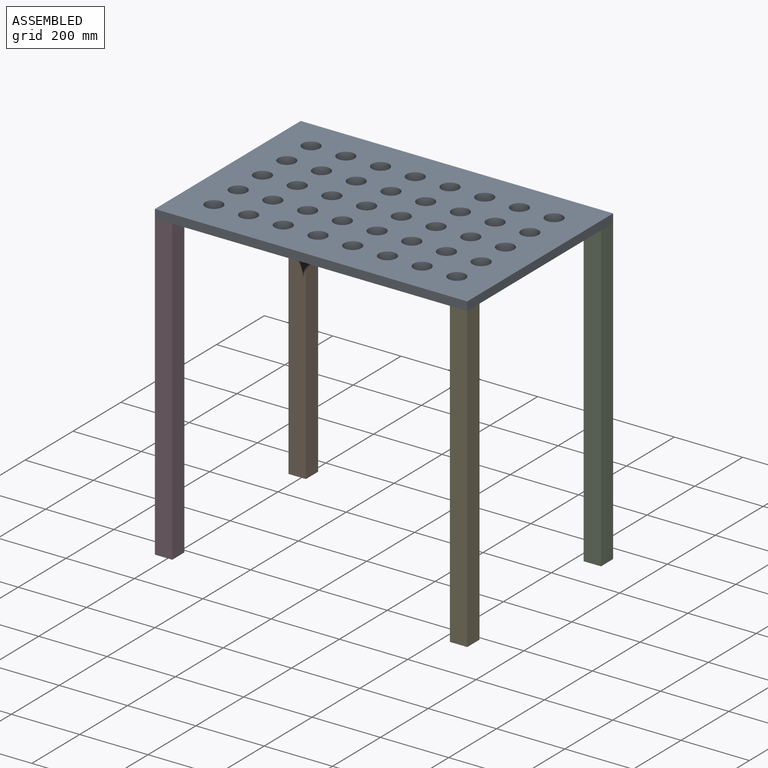
[diagram: assembled view]
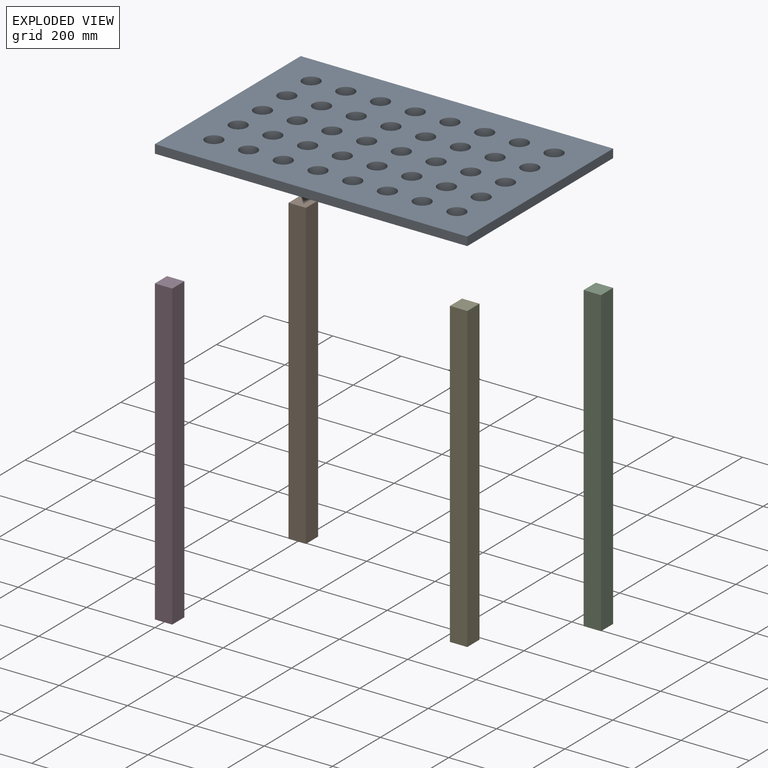
[diagram: exploded view]
GUIDED TOUR — MATED ASSEMBLY (Onshape document 39972ab8cadcbfc1535ae812, AutoMate assembly 39972ab8cadcbfc1535ae812_f03ca3b0d1e899d6af9428eb_a8540f1d7b1957737a421ba1_default)

This assembly has 5 components, labeled P0..P4 below (a component is one placed occurrence of a part; the same part can appear more than once), held together by 4 mates. A mate is a constraint between two components; its type names the relative motion it leaves free:
  FASTENED — locks the two components together rigidly (no relative motion).
Axis/direction vectors are unit vectors and 'through' points are millimeter coordinates, both in the assembly's world frame.

MATES
  1. FASTENED "Fastened 1": P3 <-> P0, direction (0.000, 0.000, 1.000) through (0.00, 0.00, 889.00) mm
  2. FASTENED "Fastened 3": P4 <-> P0, direction (0.000, 0.000, 1.000) through (914.40, 0.00, 889.00) mm
  3. FASTENED "Fastened 4": P2 <-> P0, direction (0.000, 0.000, 1.000) through (914.40, 609.60, 889.00) mm
  4. FASTENED "Fastened 5": P1 <-> P0, direction (0.000, 0.000, 1.000) through (0.00, 609.60, 889.00) mm

ASSEMBLY ORDER
  1. P4 — the base component [order verified]
  2. P3 [order verified]
  3. P2 [order verified]
  4. P1 [order verified]
  5. P0 [order verified]
Order-tag legend:
  [order verified] — this step's position reverses a verified removal order: the component was checked to insert without passing through the ones already placed.

Of the 5 components, 5 carry the full construction recipe — the FeatureScript program that regenerates the part's solid from scratch; the rest are supplied as boundary geometry only.
Each toured component is shown spotlighted twice — in the assembled view, then in the exploded view, where a leader line traces a displaced component back to its assembled socket (saturated green if recipe-attached, orange if geometry-only; every other component desaturated gray) — followed by its recipe or geometry summary and the mates that hold it.
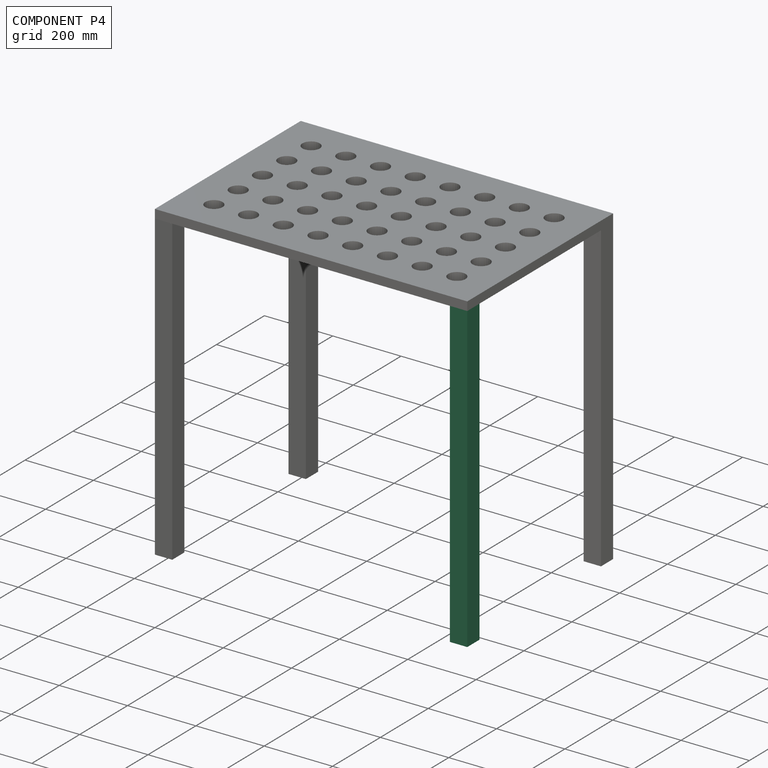
[diagram: component P4 — assembled]
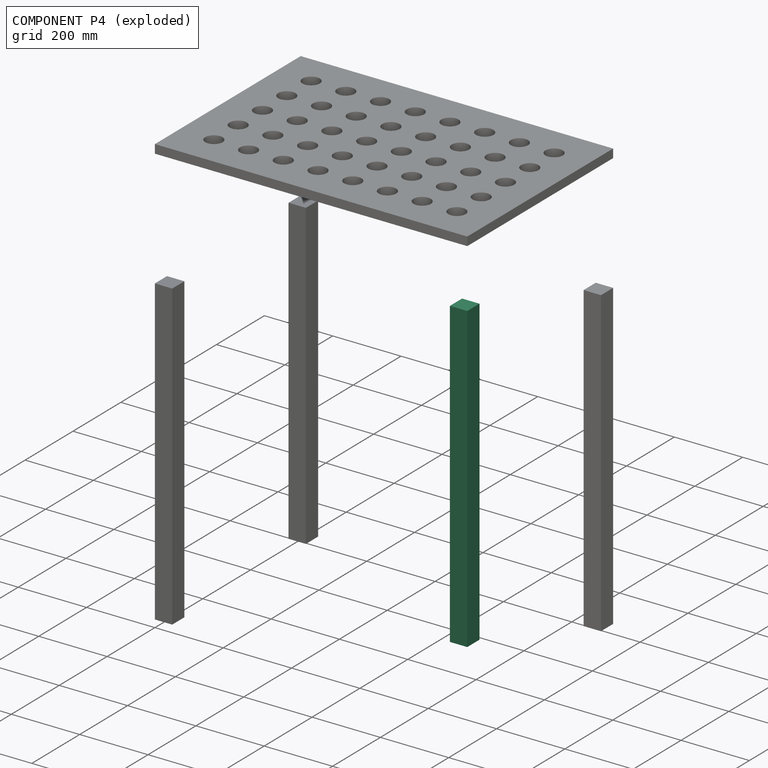
[diagram: component P4 — exploded]
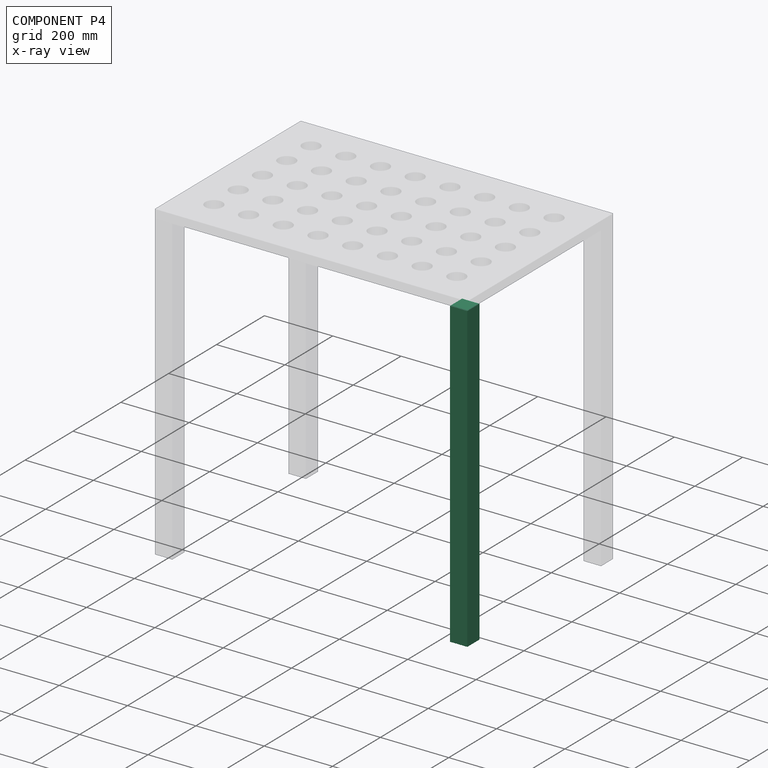
[diagram: component P4 — x-ray view]
COMPONENT P4 — same part as P1 (CADFS 00607771); its construction recipe is shown at P1.
Held by: FASTENED mate "Fastened 3" to P0.
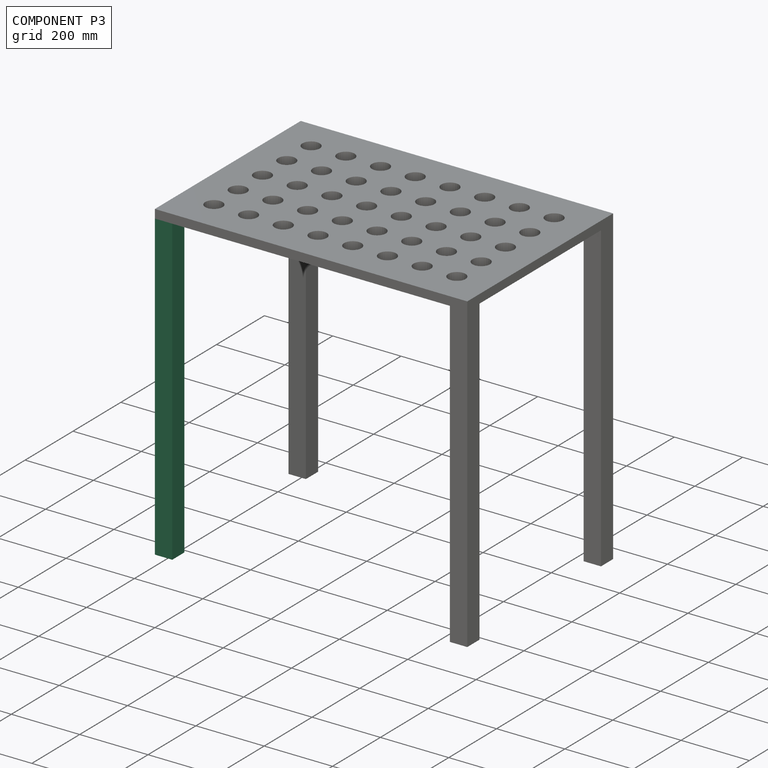
[diagram: component P3 — assembled]
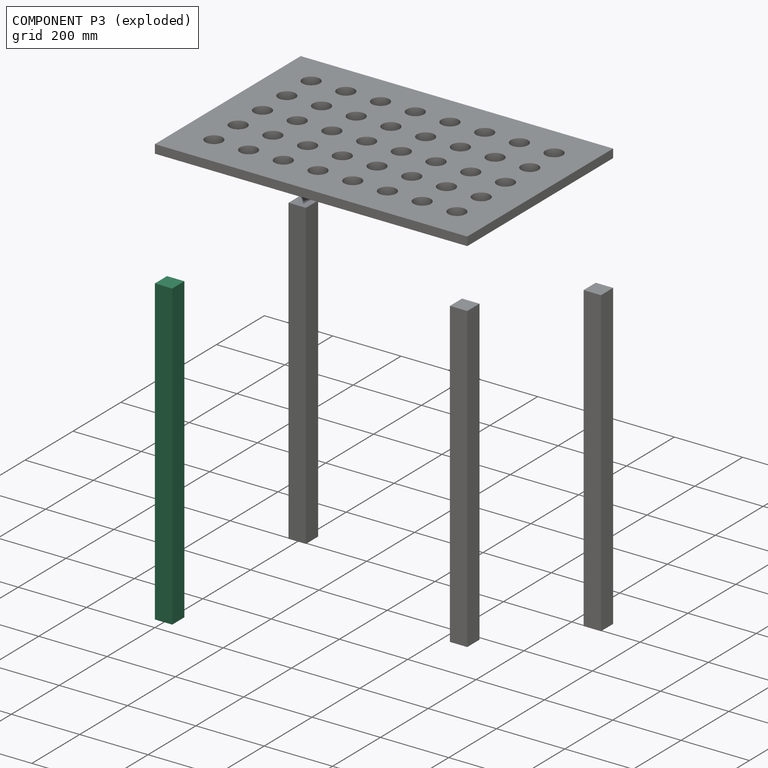
[diagram: component P3 — exploded]
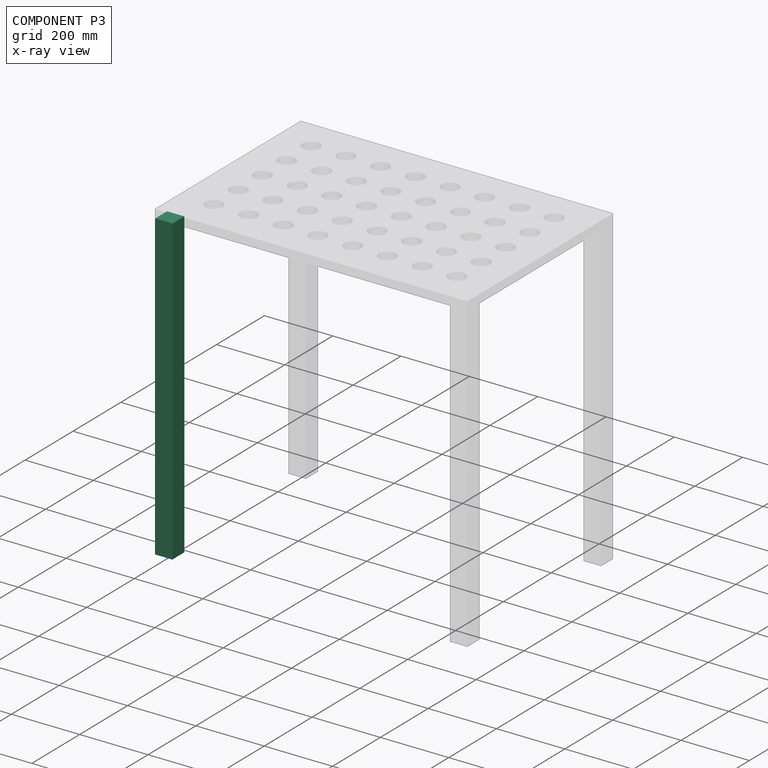
[diagram: component P3 — x-ray view]
COMPONENT P3 — same part as P1 (CADFS 00607771); its construction recipe is shown at P1.
Held by: FASTENED mate "Fastened 1" to P0.
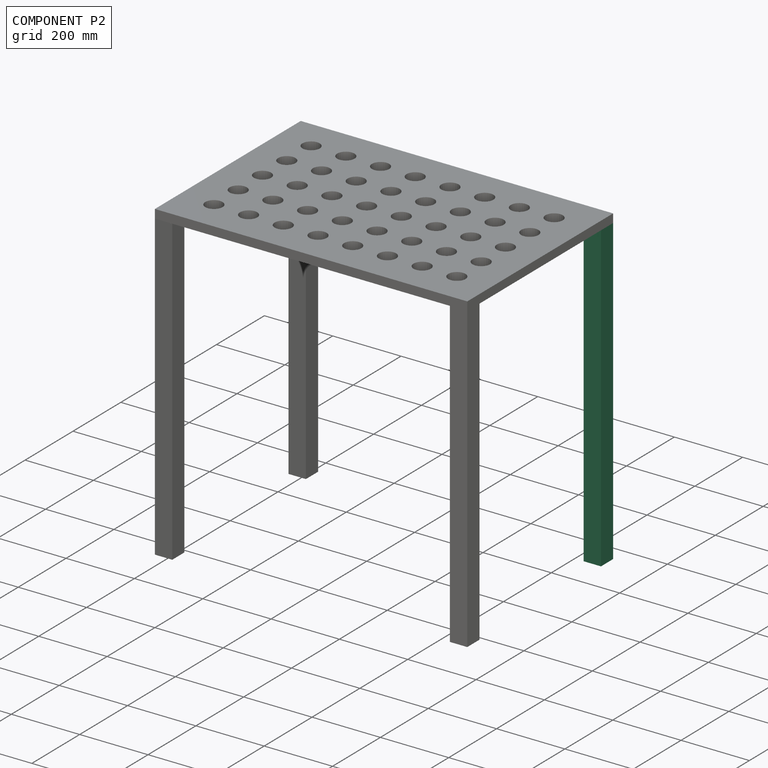
[diagram: component P2 — assembled]
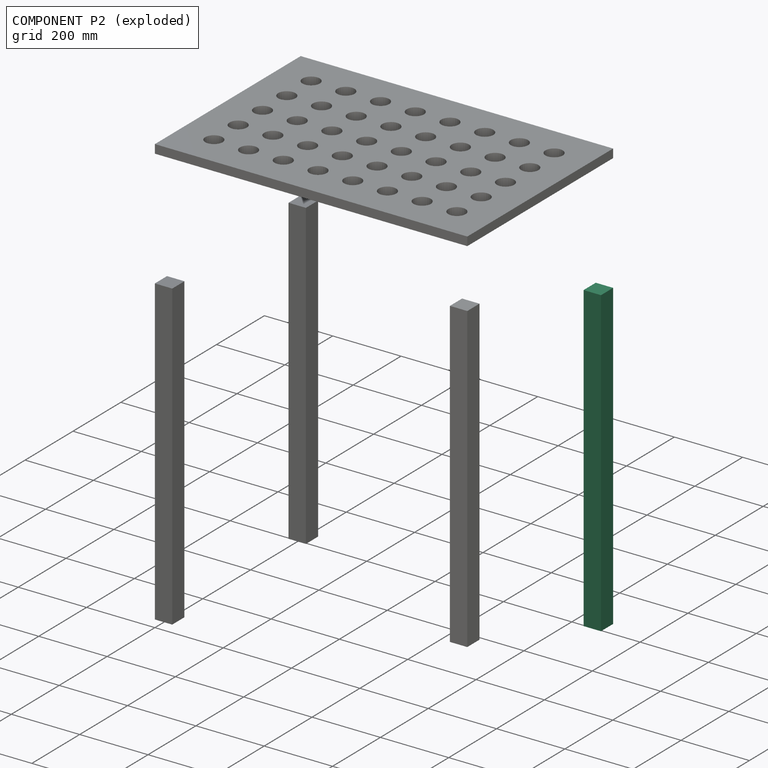
[diagram: component P2 — exploded]
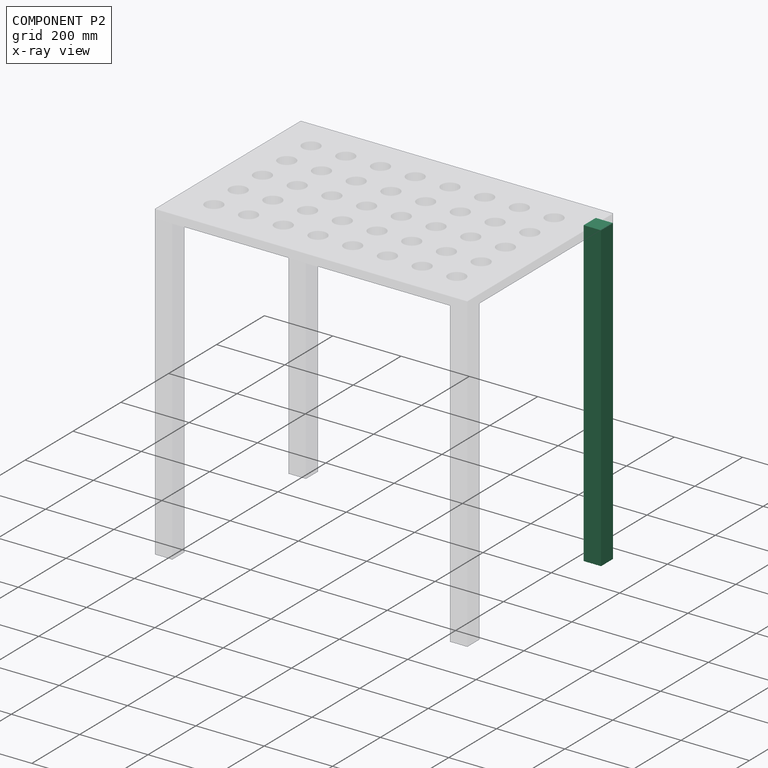
[diagram: component P2 — x-ray view]
COMPONENT P2 — same part as P1 (CADFS 00607771); its construction recipe is shown at P1.
Held by: FASTENED mate "Fastened 4" to P0.
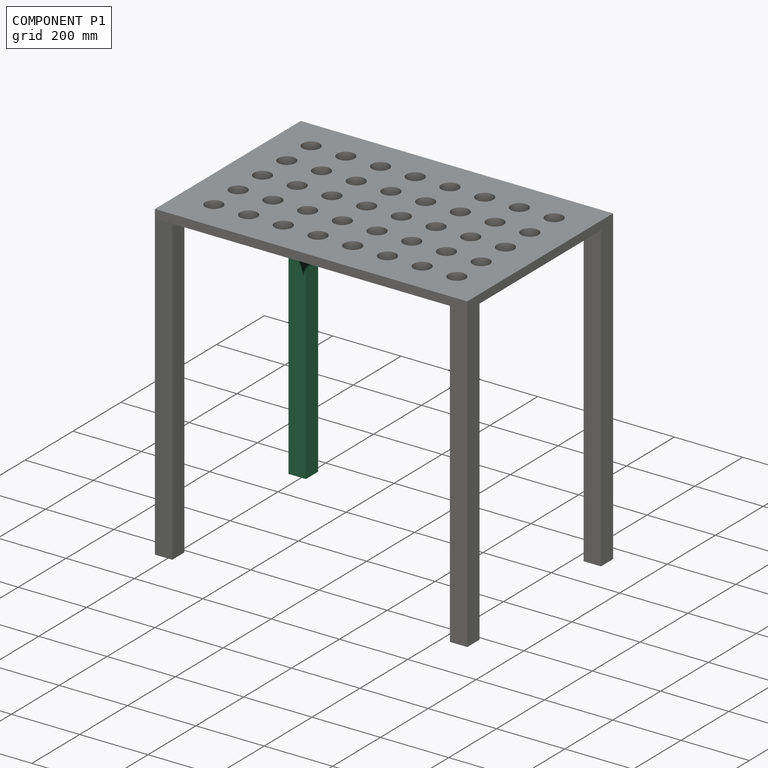
[diagram: component P1 — assembled]
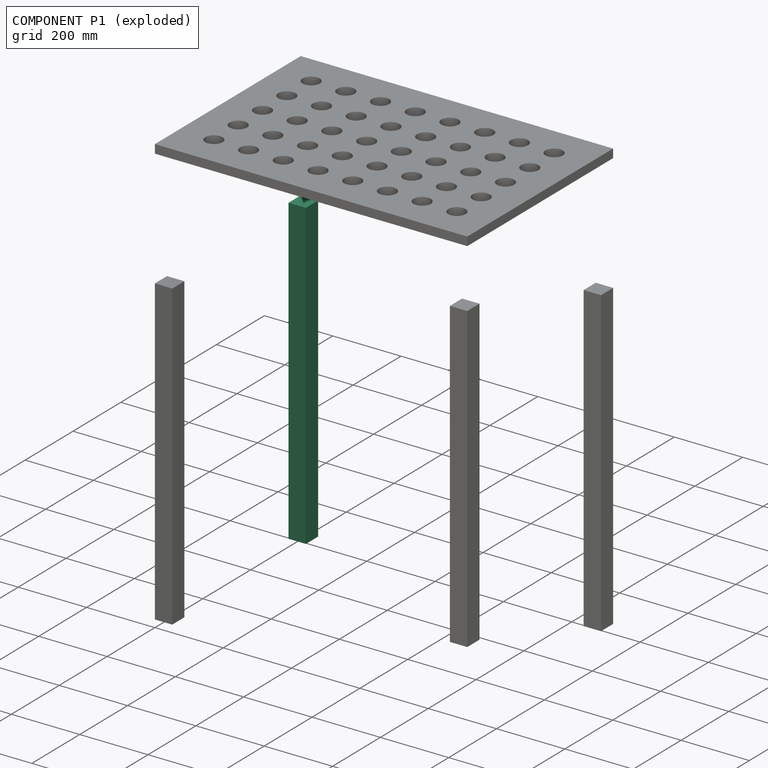
[diagram: component P1 — exploded]
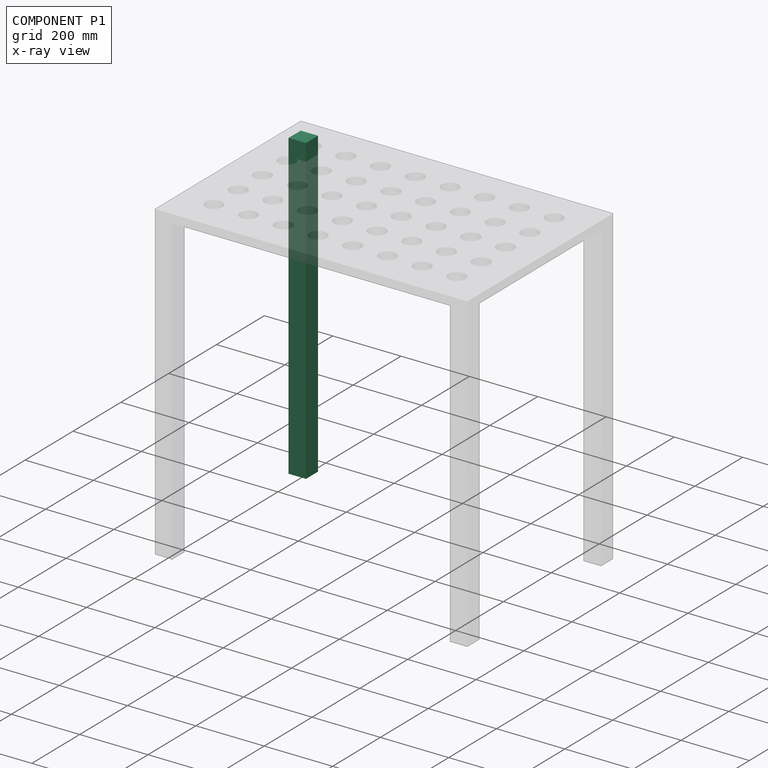
[diagram: component P1 — x-ray view]
COMPONENT P1 — recipe-attached (CADFS 00607771, mesh-verified: the recipe's output STEP matches this component's geometry to below the mesh-comparison resolution (tessellation chordal tolerance ~1.34 mm)).
Held by: FASTENED mate "Fastened 5" to P0.
Construction recipe (FeatureScript — the CAD program that rebuilds this solid; sketch coordinates are in the units given by the * unit suffixes, e.g. mm):

FeatureScript 1511;
import(path : "onshape/std/geometry.fs", version : "1511.0");
import(path : "onshape/std/common.fs", version : "1511.0");
const mm = millimeter;
const VERTEX = EntityType.VERTEX;
const EDGE = EntityType.EDGE;
const FACE = EntityType.FACE;
const BODY = EntityType.BODY;
function v(x, y){return vector(x, y);}
function OD(order){return orderDisambiguation(order);}
function OSD(set){return originalSetDisambiguation(set);}
function TD(topology){return topologyDisambiguation(topology);}
function TDD(query){return trueDependencyDisambiguation(query);}
function sQuery(a, b, c) {return sketchEntityQuery(a, b, c);}

annotation { "Feature Type Name" : "Feature", "Feature Type Description" : "" }
export const myFeature = defineFeature(function(context is Context, id is Id, definition is map)
    precondition{}
    {
        {
            var Q0;
            Q0=qCreatedBy(makeId("Top.planeOp"),FACE);
            var sketch = newSketch(context, id + "F0", { "sketchPlane" : qUnion([Q0])});
            skLineSegment(sketch, "E0.bottom", {"start": v(25.4, 25.4) * mm, "end": v(-25.4, 25.4) * mm});
            skLineSegment(sketch, "E0.top", {"start": v(25.4, -25.4) * mm, "end": v(-25.4, -25.4) * mm});
            skLineSegment(sketch, "E0.left", {"start": v(25.4, 25.4) * mm, "end": v(25.4, -25.4) * mm});
            skLineSegment(sketch, "E0.right", {"start": v(-25.4, 25.4) * mm, "end": v(-25.4, -25.4) * mm});
            skPoint(sketch, "E0.middle", {"position": v(0, 0) * mm});
            skSolve(sketch);
        }
        {
            var Q0;
            Q0=makeQuery(id+"F0.imprint","IMPRINT",FACE,{"disambiguationData":[TD([[makeQuery(id+"F0.imprint","IMPRINT",EDGE,{"derivedFrom":sQuery(id+"F0.wireOp",EDGE,"E0.bottom")}),1.0]])]});
            extrude(context, id + "F1", {"entities" : qUnion([Q0]), "depth" : 889 * mm, "offsetDistance" : 25.4 * mm});
        }
    });
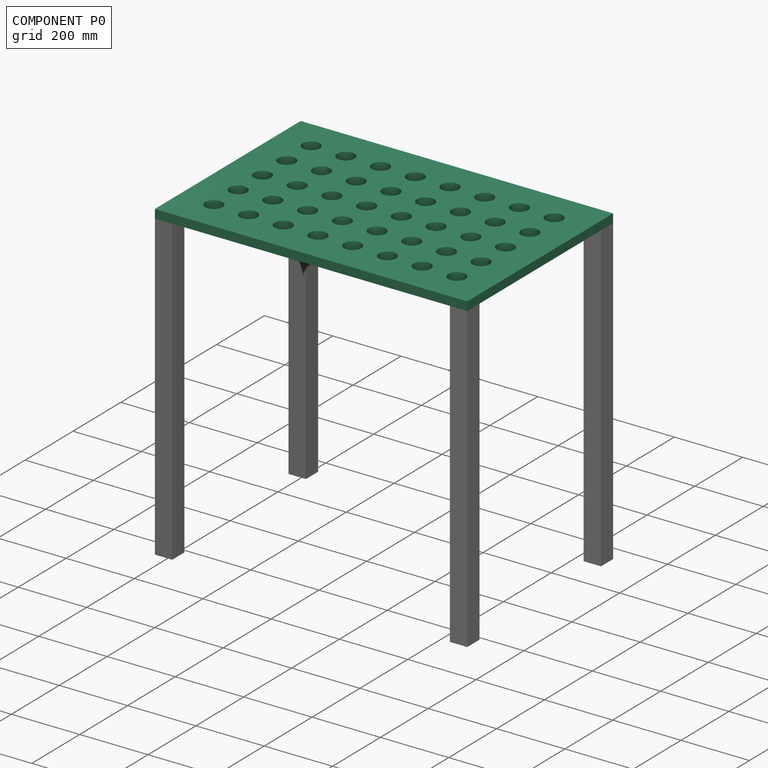
[diagram: component P0 — assembled]
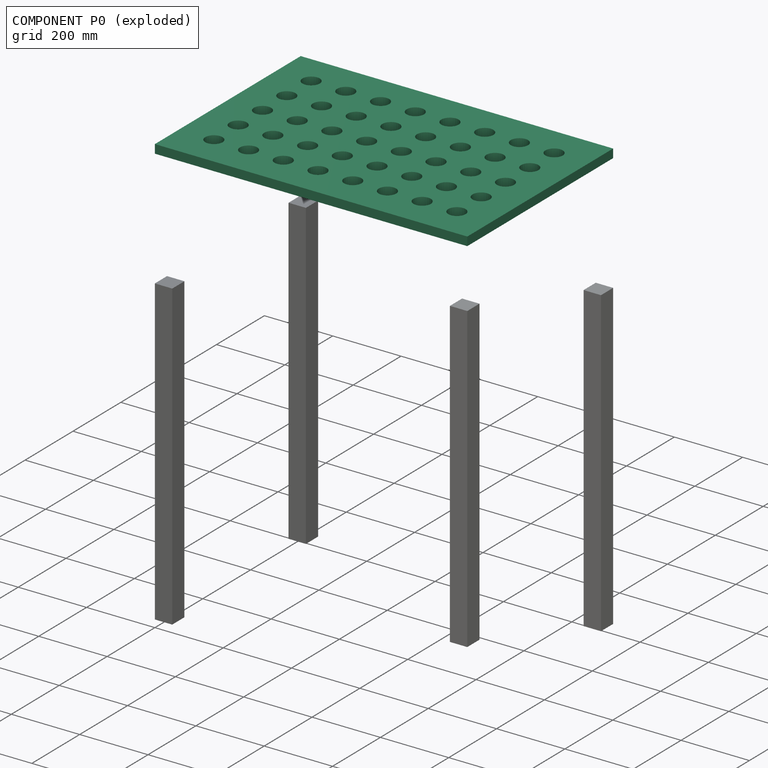
[diagram: component P0 — exploded]
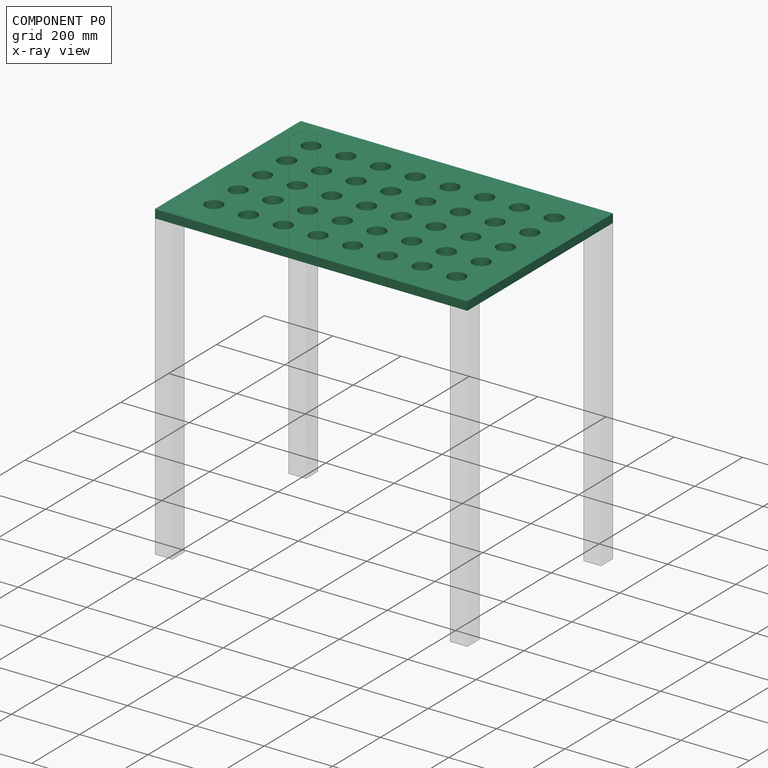
[diagram: component P0 — x-ray view]
COMPONENT P0 — recipe-attached (CADFS 00607770, mesh-verified: the recipe's output STEP matches this component's geometry to below the mesh-comparison resolution (tessellation chordal tolerance ~1.65 mm)).
Held by: FASTENED mate "Fastened 1" to P3; FASTENED mate "Fastened 3" to P4; FASTENED mate "Fastened 4" to P2; FASTENED mate "Fastened 5" to P1.
Construction recipe (FeatureScript — the CAD program that rebuilds this solid; sketch coordinates are in the units given by the * unit suffixes, e.g. mm):

FeatureScript 1511;
import(path : "onshape/std/geometry.fs", version : "1511.0");
import(path : "onshape/std/common.fs", version : "1511.0");
const mm = millimeter;
const VERTEX = EntityType.VERTEX;
const EDGE = EntityType.EDGE;
const FACE = EntityType.FACE;
const BODY = EntityType.BODY;
function v(x, y){return vector(x, y);}
function OD(order){return orderDisambiguation(order);}
function OSD(set){return originalSetDisambiguation(set);}
function TD(topology){return topologyDisambiguation(topology);}
function TDD(query){return trueDependencyDisambiguation(query);}
function sQuery(a, b, c) {return sketchEntityQuery(a, b, c);}

annotation { "Feature Type Name" : "Feature", "Feature Type Description" : "" }
export const myFeature = defineFeature(function(context is Context, id is Id, definition is map)
    precondition{}
    {
        {
            var Q0;
            Q0=qCreatedBy(makeId("Top.planeOp"),FACE);
            var sketch = newSketch(context, id + "F0", { "sketchPlane" : qUnion([Q0])});
            skLineSegment(sketch, "E0.bottom", {"start": v(457.2, 304.8) * mm, "end": v(-457.2, 304.8) * mm});
            skLineSegment(sketch, "E0.top", {"start": v(457.2, -304.8) * mm, "end": v(-457.2, -304.8) * mm});
            skLineSegment(sketch, "E0.left", {"start": v(457.2, 304.8) * mm, "end": v(457.2, -304.8) * mm});
            skLineSegment(sketch, "E0.right", {"start": v(-457.2, 304.8) * mm, "end": v(-457.2, -304.8) * mm});
            skPoint(sketch, "E0.middle", {"position": v(0, 0) * mm});
            skSolve(sketch);
        }
        {
            var Q0;
            Q0=makeQuery(id+"F0.imprint","IMPRINT",FACE,{"disambiguationData":[TD([[makeQuery(id+"F0.imprint","IMPRINT",EDGE,{"derivedFrom":sQuery(id+"F0.wireOp",EDGE,"E0.bottom")}),1.0]])]});
            extrude(context, id + "F1", {"entities" : qUnion([Q0]), "depth" : 25.4 * mm, "offsetDistance" : 25.4 * mm});
        }
        {
            var Q0;
            Q0=makeQuery(id+"F1.opExtrude","CAP_FACE",FACE,{"disambiguationData":[OSD([sQuery(id+"F0.wireOp",EDGE,"E0.bottom"),sQuery(id+"F0.wireOp",EDGE,"E0.top"),sQuery(id+"F0.wireOp",EDGE,"E0.left"),sQuery(id+"F0.wireOp",EDGE,"E0.right")])],"isStart":false});
            var sketch = newSketch(context, id + "F2", { "sketchPlane" : qUnion([Q0])});
            skCircle(sketch, "E1", {"center": v(-355.6, -203.2) * mm, "radius": 25.4 * mm});
            skCircle(sketch, "E2.1.0.0", {"center": v(-254, -203.2) * mm, "radius": 25.4 * mm});
            skCircle(sketch, "E2.2.0.0", {"center": v(-152.4, -203.2) * mm, "radius": 25.4 * mm});
            skCircle(sketch, "E2.3.0.0", {"center": v(-50.8, -203.2) * mm, "radius": 25.4 * mm});
            skCircle(sketch, "E2.4.0.0", {"center": v(50.8, -203.2) * mm, "radius": 25.4 * mm});
            skCircle(sketch, "E2.5.0.0", {"center": v(152.4, -203.2) * mm, "radius": 25.4 * mm});
            skCircle(sketch, "E2.6.0.0", {"center": v(254, -203.2) * mm, "radius": 25.4 * mm});
            skCircle(sketch, "E2.7.0.0", {"center": v(355.6, -203.2) * mm, "radius": 25.4 * mm});
            skLineSegment(sketch, "E2.direction1", {"start": v(-355.6, -203.2) * mm, "end": v(-254, -203.2) * mm, "construction": true});
            skCircle(sketch, "E3.0.1.0", {"center": v(-355.6, -101.6) * mm, "radius": 25.4 * mm});
            skCircle(sketch, "E3.0.2.0", {"center": v(-355.6, 0) * mm, "radius": 25.4 * mm});
            skCircle(sketch, "E3.0.3.0", {"center": v(-355.6, 101.6) * mm, "radius": 25.4 * mm});
            skCircle(sketch, "E3.0.4.0", {"center": v(-355.6, 203.2) * mm, "radius": 25.4 * mm});
            skCircle(sketch, "E3.1.1.0", {"center": v(-254, -101.6) * mm, "radius": 25.4 * mm});
            skCircle(sketch, "E3.1.2.0", {"center": v(-254, 0) * mm, "radius": 25.4 * mm});
            skCircle(sketch, "E3.1.3.0", {"center": v(-254, 101.6) * mm, "radius": 25.4 * mm});
            skCircle(sketch, "E3.1.4.0", {"center": v(-254, 203.2) * mm, "radius": 25.4 * mm});
            skCircle(sketch, "E3.2.1.0", {"center": v(-152.4, -101.6) * mm, "radius": 25.4 * mm});
            skCircle(sketch, "E3.2.2.0", {"center": v(-152.4, 0) * mm, "radius": 25.4 * mm});
            skCircle(sketch, "E3.2.3.0", {"center": v(-152.4, 101.6) * mm, "radius": 25.4 * mm});
            skCircle(sketch, "E3.2.4.0", {"center": v(-152.4, 203.2) * mm, "radius": 25.4 * mm});
            skCircle(sketch, "E3.3.1.0", {"center": v(-50.8, -101.6) * mm, "radius": 25.4 * mm});
            skCircle(sketch, "E3.3.2.0", {"center": v(-50.8, 0) * mm, "radius": 25.4 * mm});
            skCircle(sketch, "E3.3.3.0", {"center": v(-50.8, 101.6) * mm, "radius": 25.4 * mm});
            skCircle(sketch, "E3.3.4.0", {"center": v(-50.8, 203.2) * mm, "radius": 25.4 * mm});
            skCircle(sketch, "E3.4.1.0", {"center": v(50.8, -101.6) * mm, "radius": 25.4 * mm});
            skCircle(sketch, "E3.4.2.0", {"center": v(50.8, 0) * mm, "radius": 25.4 * mm});
            skCircle(sketch, "E3.4.3.0", {"center": v(50.8, 101.6) * mm, "radius": 25.4 * mm});
            skCircle(sketch, "E3.4.4.0", {"center": v(50.8, 203.2) * mm, "radius": 25.4 * mm});
            skCircle(sketch, "E3.5.1.0", {"center": v(152.4, -101.6) * mm, "radius": 25.4 * mm});
            skCircle(sketch, "E3.5.2.0", {"center": v(152.4, 0) * mm, "radius": 25.4 * mm});
            skCircle(sketch, "E3.5.3.0", {"center": v(152.4, 101.6) * mm, "radius": 25.4 * mm});
            skCircle(sketch, "E3.5.4.0", {"center": v(152.4, 203.2) * mm, "radius": 25.4 * mm});
            skCircle(sketch, "E3.6.1.0", {"center": v(254, -101.6) * mm, "radius": 25.4 * mm});
            skCircle(sketch, "E3.6.2.0", {"center": v(254, 0) * mm, "radius": 25.4 * mm});
            skCircle(sketch, "E3.6.3.0", {"center": v(254, 101.6) * mm, "radius": 25.4 * mm});
            skCircle(sketch, "E3.6.4.0", {"center": v(254, 203.2) * mm, "radius": 25.4 * mm});
            skCircle(sketch, "E3.7.1.0", {"center": v(355.6, -101.6) * mm, "radius": 25.4 * mm});
            skCircle(sketch, "E3.7.2.0", {"center": v(355.6, 0) * mm, "radius": 25.4 * mm});
            skCircle(sketch, "E3.7.3.0", {"center": v(355.6, 101.6) * mm, "radius": 25.4 * mm});
            skCircle(sketch, "E3.7.4.0", {"center": v(355.6, 203.2) * mm, "radius": 25.4 * mm});
            skLineSegment(sketch, "E3.direction2", {"start": v(-355.6, -203.2) * mm, "end": v(-355.6, -101.6) * mm, "construction": true});
            skSolve(sketch);
        }
        {
            var Q0;
            Q0 = qSketchRegion(id + "F2", true);
            extrude(context, id + "F3", {"entities" : qUnion([Q0]), "operationType" : NewBodyOperationType.REMOVE, "endBound" : BoundingType.UP_TO_NEXT, "oppositeDirection" : true, "depth" : 25.4 * mm, "offsetDistance" : 25.4 * mm});
        }
    });
PROVENANCE & LICENSES
Assembly (occurrences, transforms, mates, per-part STEP geometry): AutoMate dataset, Zenodo record 7776208, CC0.
Construction recipes: CADFS (HuggingFace VladPyatov/CADFS, CC-BY-4.0, layered over the ABC dataset), FeatureScript reconstruction programs keyed by ABC model id.
Join: ABC meta listings map ABC model id -> Onshape documentId; within a shared document, parts are matched by geometric signature (bounding-box dims + volume at 0.1% relative tolerance, exact B-rep face/solid counts).
Verification: 5 of this assembly's 5 components carry a recipe attachment, and every attachment is mesh-verified: the CADFS STEP and the AutoMate member STEP were compared as meshes in their shared local frame (symmetric sampled-point-to-mesh distance); worst across the 5 attachments: below the mesh-comparison resolution (tessellation chordal tolerance ~1.65 mm) on a 1099 mm part.
Renders: orthographic iso camera (az 35 / el 25); the floor grid conveys scale (grid pitch printed in each image; no ruler). In the exploded view each component is displaced by its stored offset vector: the offsets alone carry the explosion direction (mate normal/axis signs are not orientation cues and do not encode it), and separation distances are assigned per mate-chain, not proportionally to assembly-order depth.
